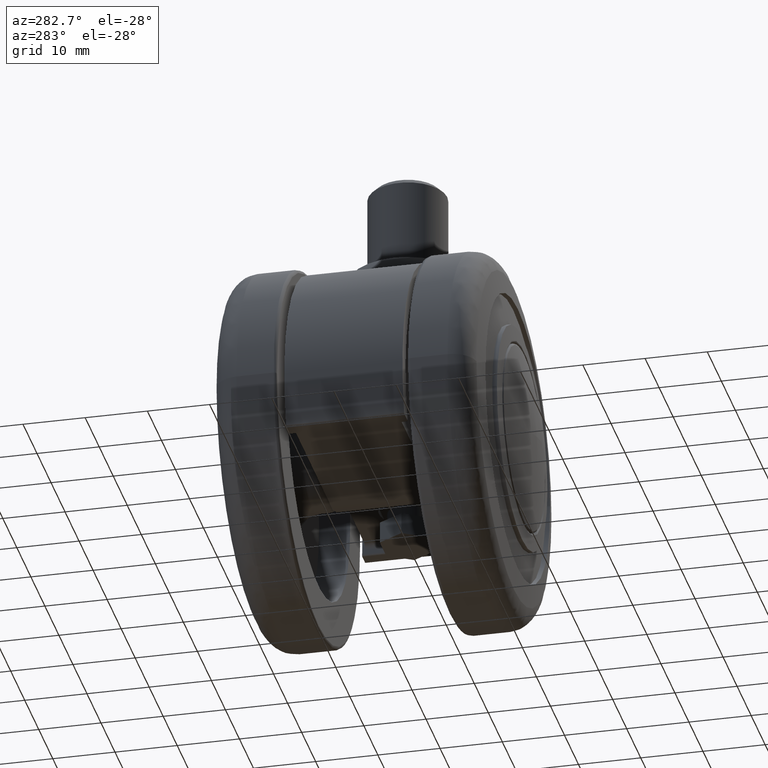
[diagram: clean part render]
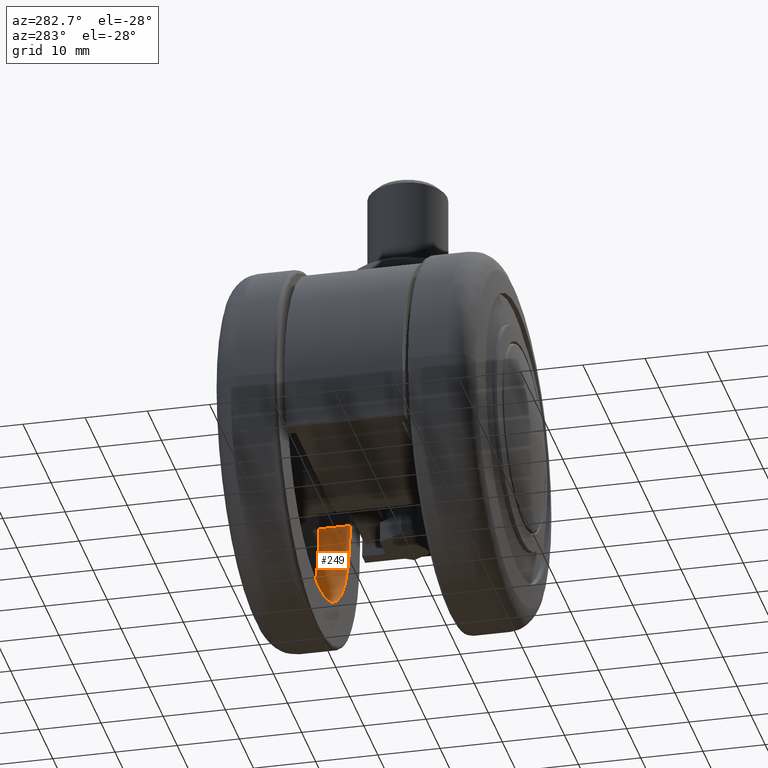
[diagram: same view with one face highlighted and labeled with its STEP entity id]
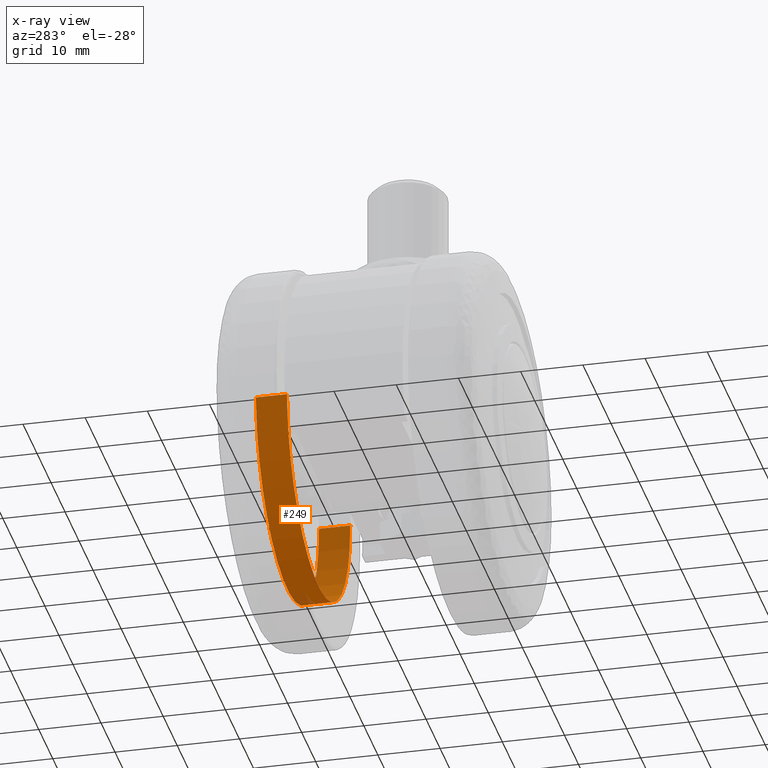
[diagram: x-ray of the same camera — body ghosted, the highlighted face saturated]
A machine part, auxiliary view. The second image highlights one B-rep face of the part: STEP entity #249.
The next image is the same camera in x-ray: the body ghosted, the highlighted face saturated — about 2% of this face is hidden behind the body in this view.
In plain terms, the highlighted cylindrical surface (partial cylindrical patch) has radius 22.5 mm, axis along (-0, -1, 0).
Its self-contained STEP definition (entity closure, byte-faithful):
#249=ADVANCED_FACE('',(#1228),#1227,.F.);
#1227=CYLINDRICAL_SURFACE('',#3830,2.25000000000E+01);
#1228=FACE_OUTER_BOUND('',#3831,.T.);
#3827=CARTESIAN_POINT('',(0.00000000000E+00,0.00000000000E+00,4.50000000000E+00));
#3828=DIRECTION('',(-0.00000000000E+00,-0.00000000000E+00,-1.00000000000E+00));
#3829=DIRECTION('',(-1.00000000000E+00,-0.00000000000E+00,-0.00000000000E+00));
#3830=AXIS2_PLACEMENT_3D('',#3827,#3828,#3829);
#3831=EDGE_LOOP('',(#4832,#4833,#4834,#4835,#4836,#4837));
#4832=ORIENTED_EDGE('',*,*,#5298,.T.);
#4833=ORIENTED_EDGE('',*,*,#5300,.T.);
#4834=ORIENTED_EDGE('',*,*,#5333,.T.);
#4835=ORIENTED_EDGE('',*,*,#5291,.T.);
#4836=ORIENTED_EDGE('',*,*,#5293,.T.);
#4837=ORIENTED_EDGE('',*,*,#5334,.F.);
#5291=EDGE_CURVE('',#6776,#6777,#6778,.T.);
#5293=EDGE_CURVE('',#6777,#6784,#6791,.T.);
#5298=EDGE_CURVE('',#6825,#6826,#6827,.T.);
#5300=EDGE_CURVE('',#6826,#6833,#6840,.T.);
#5333=EDGE_CURVE('',#6833,#6776,#7062,.T.);
#5334=EDGE_CURVE('',#6825,#6784,#7068,.T.);
#6776=VERTEX_POINT('',#8939);
#6777=VERTEX_POINT('',#8940);
#6778=CIRCLE('',#8944,2.25000000000E+01);
#6784=VERTEX_POINT('',#8945);
#6791=CIRCLE('',#8953,2.25000000000E+01);
#6825=VERTEX_POINT('',#8974);
#6826=VERTEX_POINT('',#8975);
#6827=CIRCLE('',#8979,2.25000000000E+01);
#6833=VERTEX_POINT('',#8980);
#6840=CIRCLE('',#8988,2.25000000000E+01);
#7062=(BOUNDED_CURVE() B_SPLINE_CURVE(1,(#9143,#9144),.UNSPECIFIED.,.F.,.F.) B_SPLINE_CURVE_WITH_KNOTS((2,2),(8.33333313467E-02,9.16666664002E-01),.UNSPECIFIED.) CURVE() GEOMETRIC_REPRESENTATION_ITEM() RATIONAL_B_SPLINE_CURVE((1.00000000000E+00,1.00000000000E+00)) REPRESENTATION_ITEM('') );
#7068=(BOUNDED_CURVE() B_SPLINE_CURVE(1,(#9145,#9146),.UNSPECIFIED.,.F.,.F.) B_SPLINE_CURVE_WITH_KNOTS((2,2),(8.33333333333E-02,9.16666666667E-01),.UNSPECIFIED.) CURVE() GEOMETRIC_REPRESENTATION_ITEM() RATIONAL_B_SPLINE_CURVE((7.50000000000E-01,7.50000000000E-01)) REPRESENTATION_ITEM('') );
#8939=CARTESIAN_POINT('',(-2.25000000000E+01,-8.03386126938E-08,2.00000000000E+00));
#8940=CARTESIAN_POINT('',(-2.23970834024E+01,2.14957090231E+00,2.00000000000E+00));
#8941=CARTESIAN_POINT('',(0.00000000000E+00,0.00000000000E+00,2.00000000000E+00));
#8942=DIRECTION('',(0.00000000000E+00,0.00000000000E+00,-1.00000000000E+00));
#8943=DIRECTION('',(-9.95425928997E-01,9.55364845470E-02,0.00000000000E+00));
#8944=AXIS2_PLACEMENT_3D('',#8941,#8942,#8943);
#8945=CARTESIAN_POINT('',(2.24999999999E+01,-5.45503734179E-05,2.00000000000E+00));
#8950=CARTESIAN_POINT('',(0.00000000000E+00,0.00000000000E+00,2.00000000000E+00));
#8951=DIRECTION('',(0.00000000000E+00,0.00000000000E+00,-1.00000000000E+00));
#8952=DIRECTION('',(-9.95425928997E-01,9.55364845470E-02,0.00000000000E+00));
#8953=AXIS2_PLACEMENT_3D('',#8950,#8951,#8952);
#8974=CARTESIAN_POINT('',(2.24999999999E+01,-5.45502832697E-05,7.00000000000E+00));
#8975=CARTESIAN_POINT('',(-2.23970834024E+01,2.14957090231E+00,7.00000000000E+00));
#8976=CARTESIAN_POINT('',(0.00000000000E+00,0.00000000000E+00,7.00000000000E+00));
#8977=DIRECTION('',(0.00000000000E+00,0.00000000000E+00,1.00000000000E+00));
#8978=DIRECTION('',(-9.95425928997E-01,9.55364845470E-02,0.00000000000E+00));
#8979=AXIS2_PLACEMENT_3D('',#8976,#8977,#8978);
#8980=CARTESIAN_POINT('',(-2.25000000000E+01,-8.03386128400E-08,7.00000000000E+00));
#8985=CARTESIAN_POINT('',(0.00000000000E+00,0.00000000000E+00,7.00000000000E+00));
#8986=DIRECTION('',(0.00000000000E+00,0.00000000000E+00,1.00000000000E+00));
#8987=DIRECTION('',(-9.95425928997E-01,9.55364845470E-02,0.00000000000E+00));
#8988=AXIS2_PLACEMENT_3D('',#8985,#8986,#8987);
#9143=CARTESIAN_POINT('',(-2.25000000000E+01,0.00000000000E+00,7.00000001192E+00));
#9144=CARTESIAN_POINT('',(-2.25000000000E+01,0.00000000000E+00,2.00000001599E+00));
#9145=CARTESIAN_POINT('',(2.25000000000E+01,0.00000000000E+00,7.00000000000E+00));
#9146=CARTESIAN_POINT('',(2.25000000000E+01,0.00000000000E+00,2.00000000000E+00));